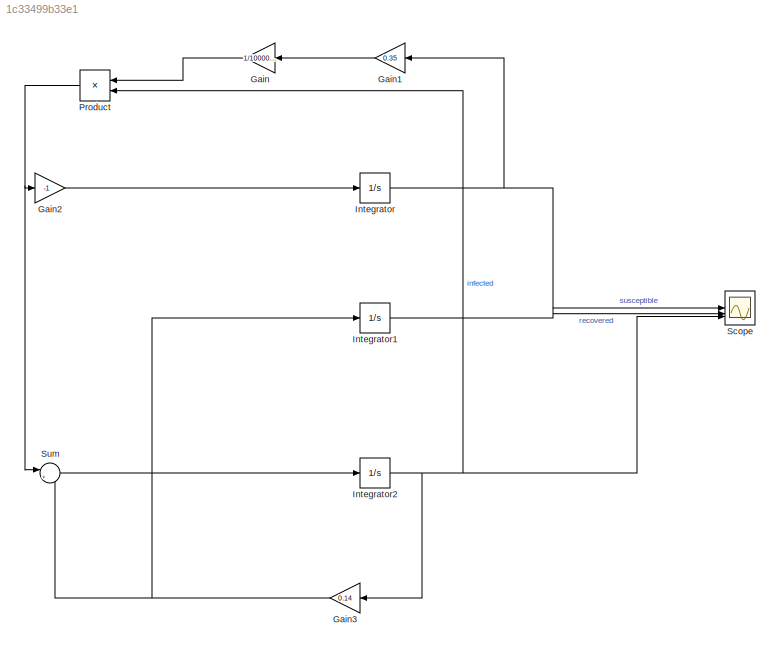
MODEL slx_1c33499b33e1
KIND model
CONFIG AbsTol = auto
CONFIG EnableMultiTasking = off
CONFIG FixedStep = auto
CONFIG MaxStep = auto
CONFIG MinStep = auto
CONFIG RelTol = 1e-3
CONFIG SampleTimeConstraint = Unconstrained
CONFIG SolverName = VariableStepAuto
CONFIG StartTime = 0.0
CONFIG StopTime = 365
BLOCK [Gain] Gain
  Gain = 1/1000000
BLOCK [Gain] Gain1
  Gain = 0.35
BLOCK [Gain] Gain2
  Gain = -1
BLOCK [Gain] Gain3
  Gain = 0.14
BLOCK [Integrator] Integrator
  InitialCondition = 999833
BLOCK [Integrator] Integrator1
  InitialCondition = 1
BLOCK [Integrator] Integrator2
  InitialCondition = 166
BLOCK [Product] Product
BLOCK [Scope] Scope
  Floating = off
  NumInputPorts = 3
  ScopeSpecificationString = Simulink.scopes.TimeScopeBlockCfg('CurrentConfiguration', extmgr.ConfigurationSet(extmgr.Configuration('Core','General UI',true),extmgr.Configuration('Core','Source UI',true),extmgr.Configuration('Sources','WiredSimulink',true),extmgr.Configuration('Visuals','Time Domain',true,'SerializedDisplays',{struct('MinYLimReal','-124979.125','MaxYLimReal','1124812.125','YLabelReal','','MinYLimMag','    0.0...<+1502ch>
BLOCK [Sum] Sum
  Inputs = |+-
LINE Gain1:1 -> Gain:1
LINE Gain2:1 -> Integrator:1
NET Gain3:1 -> Integrator1:1, Sum:2
LINE Gain:1 -> Product:1
LINE Integrator1:1 -> Scope:2
NET Integrator2:1 -> Gain3:1, Product:2, Scope:3
NET Integrator:1 -> Gain1:1, Scope:1
NET Product:1 -> Gain2:1, Sum:1
LINE Sum:1 -> Integrator2:1
note: NET lines group one-source signal fan-out (src -> all destinations, sorted); 1:1 wires keep LINE
